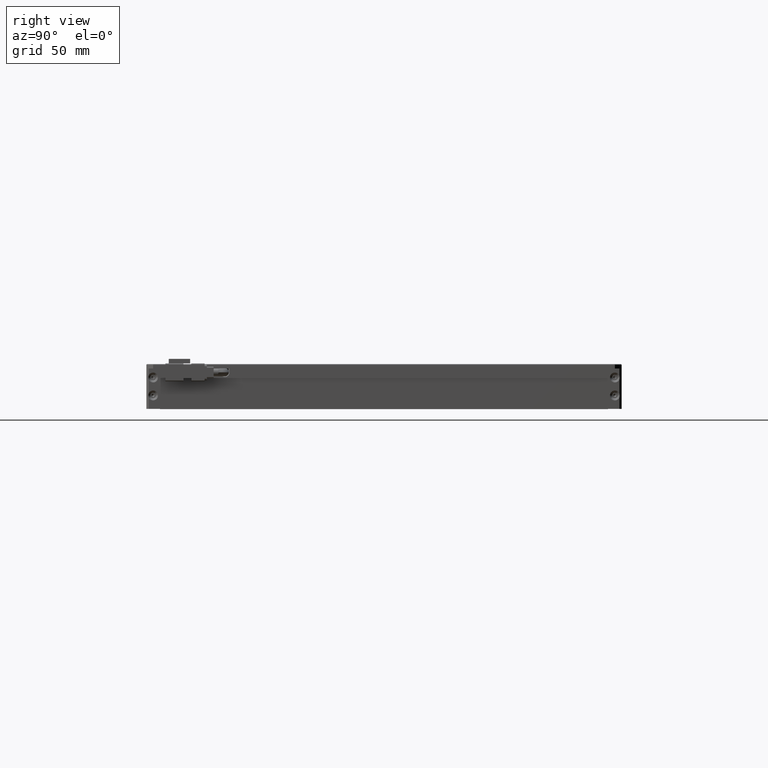
[diagram: clean part render]
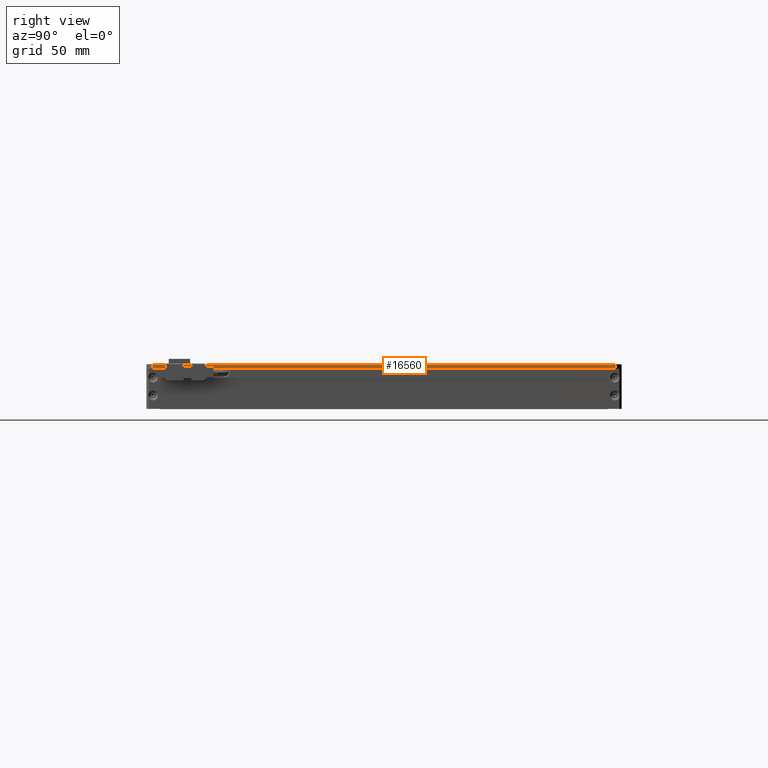
[diagram: same view with one face highlighted and labeled with its STEP entity id]
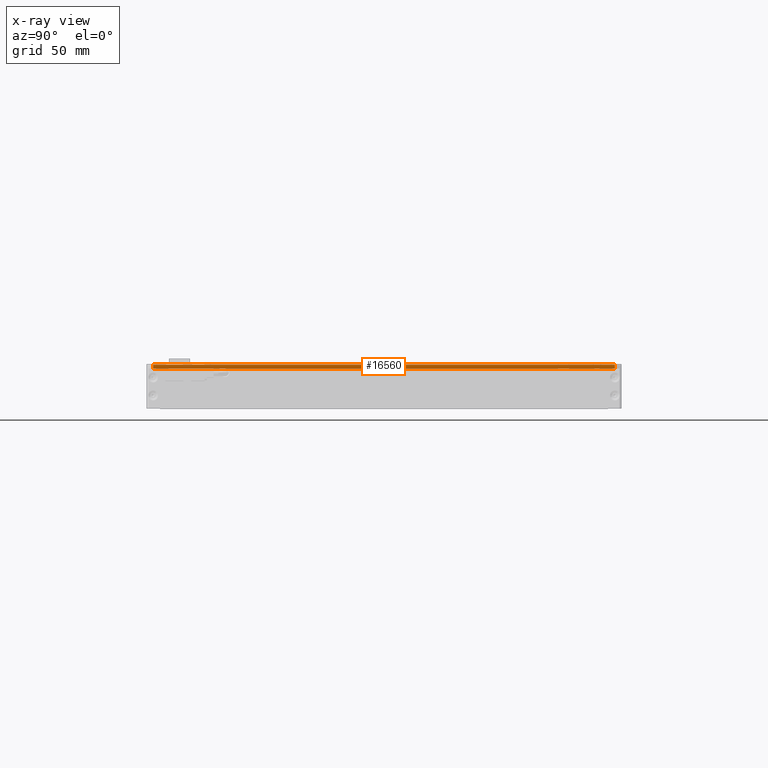
[diagram: x-ray of the same camera — body ghosted, the highlighted face saturated]
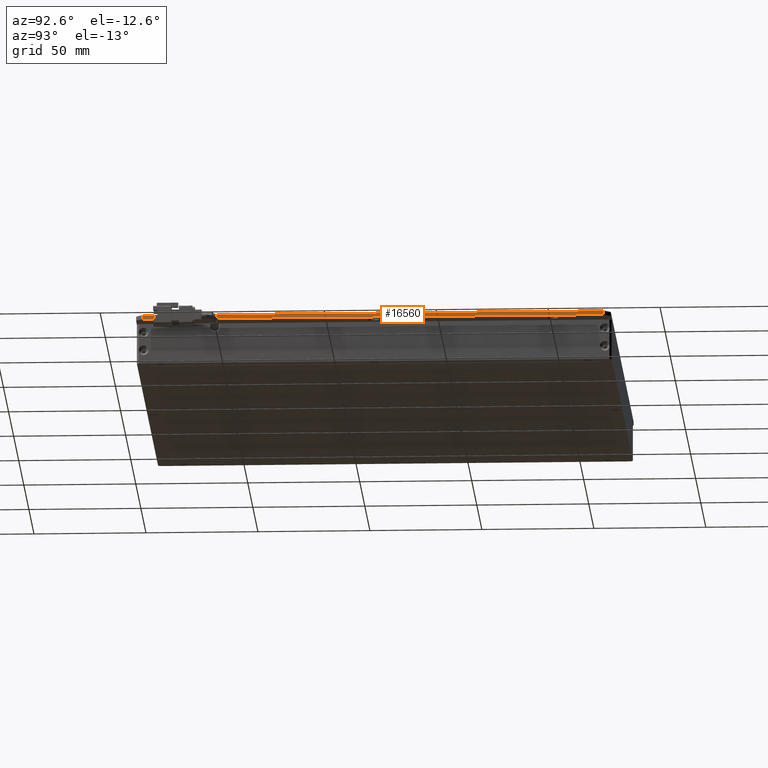
[diagram: same view with one face highlighted and labeled with its STEP entity id]
A machine part, right view. The second image highlights one B-rep face of the part: STEP entity #16560.
The next image is the same camera in x-ray: the body ghosted, the highlighted face saturated — about 0% of this face is hidden behind the body in this view.
A second angle (auxiliary view) of the same face is appended — the face is thin or edge-on in the first view.
In plain terms, the highlighted planar face has unit normal (-1, -0, 0).
Its self-contained STEP definition (entity closure, byte-faithful):
#712 = VERTEX_POINT ( 'NONE', #819 ) ;
#819 = CARTESIAN_POINT ( 'NONE',  ( 133.6657505824761400, -136.3787539827808100, -2.364753358408133700E-011 ) ) ;
#964 = LINE ( 'NONE', #2831, #5611 ) ;
#1278 = CARTESIAN_POINT ( 'NONE',  ( 133.6657505824760800, 69.62124601721916400, 1.999999999976353100 ) ) ;
#1731 = CARTESIAN_POINT ( 'NONE',  ( 133.6657505824761400, 72.62124601721916400, -2.364688306277784600E-011 ) ) ;
#2600 = DIRECTION ( 'NONE',  ( -1.000000000000000000, -2.694716079187273400E-016, 0.0000000000000000000 ) ) ;
#2831 = CARTESIAN_POINT ( 'NONE',  ( 133.6657505824761400, -136.3787539827808100, 1.999999999976353100 ) ) ;
#4155 = ORIENTED_EDGE ( 'NONE', *, *, #21883, .T. ) ;
#4287 = PLANE ( 'NONE',  #5329 ) ;
#4471 = EDGE_CURVE ( 'NONE', #9175, #11359, #19226, .T. ) ;
#5329 = AXIS2_PLACEMENT_3D ( 'NONE', #13012, #2600, #14763 ) ;
#5611 = VECTOR ( 'NONE', #16707, 1000.000000000000000 ) ;
#5761 = LINE ( 'NONE', #1731, #14975 ) ;
#5968 = VECTOR ( 'NONE', #17046, 1000.000000000000000 ) ;
#6230 = CARTESIAN_POINT ( 'NONE',  ( 133.6657505824761100, 69.62124601721916400, 1.699999999976318900 ) ) ;
#7569 = EDGE_CURVE ( 'NONE', #712, #21657, #5761, .T. ) ;
#7752 = ORIENTED_EDGE ( 'NONE', *, *, #16014, .F. ) ;
#9175 = VERTEX_POINT ( 'NONE', #13116 ) ;
#9639 = EDGE_LOOP ( 'NONE', ( #16699, #7752, #20785, #4155 ) ) ;
#10459 = LINE ( 'NONE', #1278, #14538 ) ;
#11359 = VERTEX_POINT ( 'NONE', #6230 ) ;
#13012 = CARTESIAN_POINT ( 'NONE',  ( 133.6657505824761400, -136.3787539827808100, 1.999999999976353100 ) ) ;
#13116 = CARTESIAN_POINT ( 'NONE',  ( 133.6657505824761100, -136.3787539827808100, 1.699999999976331600 ) ) ;
#13406 = DIRECTION ( 'NONE',  ( 0.0000000000000000000, 0.0000000000000000000, 1.000000000000000000 ) ) ;
#13886 = DIRECTION ( 'NONE',  ( 0.0000000000000000000, 1.000000000000000000, 0.0000000000000000000 ) ) ;
#14538 = VECTOR ( 'NONE', #13406, 1000.000000000000000 ) ;
#14763 = DIRECTION ( 'NONE',  ( 2.694716079187273400E-016, -1.000000000000000000, 0.0000000000000000000 ) ) ;
#14975 = VECTOR ( 'NONE', #13886, 1000.000000000000000 ) ;
#16014 = EDGE_CURVE ( 'NONE', #712, #9175, #964, .T. ) ;
#16102 = FACE_OUTER_BOUND ( 'NONE', #9639, .T. ) ;
#16560 = ADVANCED_FACE ( 'NONE', ( #16102 ), #4287, .F. ) ;
#16699 = ORIENTED_EDGE ( 'NONE', *, *, #4471, .F. ) ;
#16707 = DIRECTION ( 'NONE',  ( 0.0000000000000000000, 0.0000000000000000000, 1.000000000000000000 ) ) ;
#17046 = DIRECTION ( 'NONE',  ( -2.694716079187273400E-016, 1.000000000000000000, -0.0000000000000000000 ) ) ;
#17639 = CARTESIAN_POINT ( 'NONE',  ( 133.6657505824761100, 69.62124601721913600, -2.364720832342959200E-011 ) ) ;
#19226 = LINE ( 'NONE', #22320, #5968 ) ;
#20785 = ORIENTED_EDGE ( 'NONE', *, *, #7569, .T. ) ;
#21657 = VERTEX_POINT ( 'NONE', #17639 ) ;
#21883 = EDGE_CURVE ( 'NONE', #21657, #11359, #10459, .T. ) ;
#22320 = CARTESIAN_POINT ( 'NONE',  ( 133.6657505824761400, -136.3787539827808100, 1.699999999976330700 ) ) ;